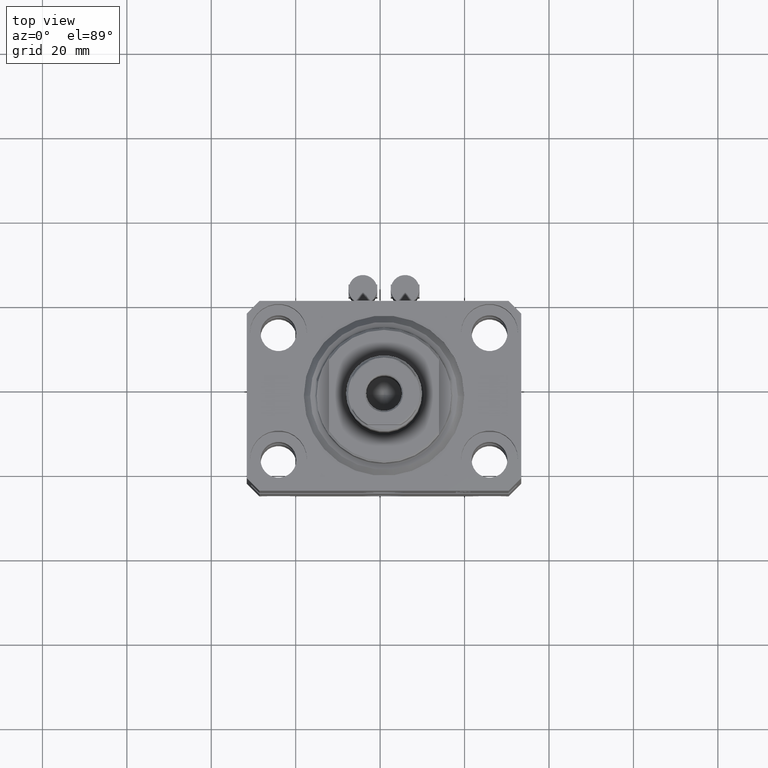
[diagram: clean part render]
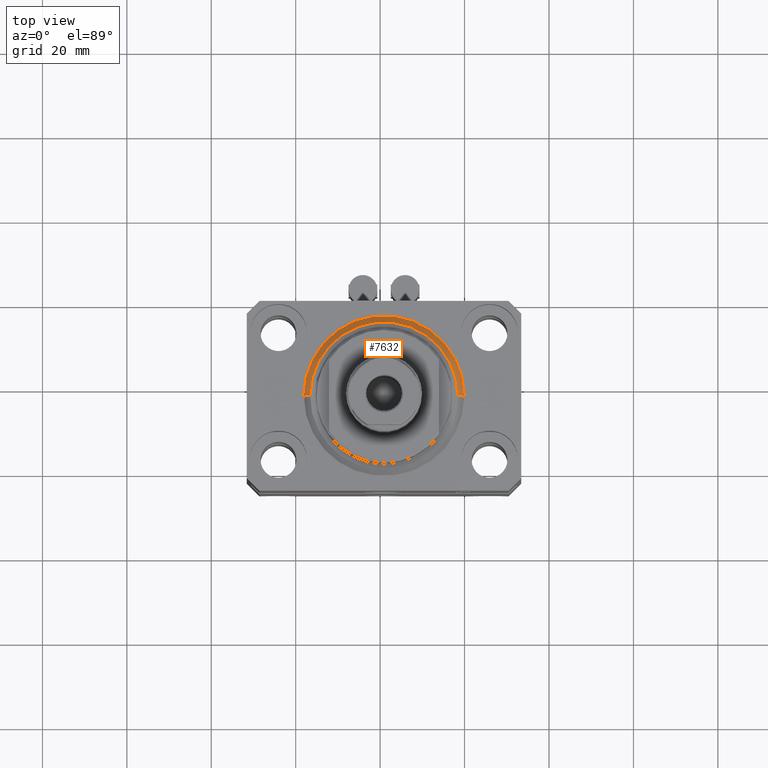
[diagram: same view with one face highlighted and labeled with its STEP entity id]
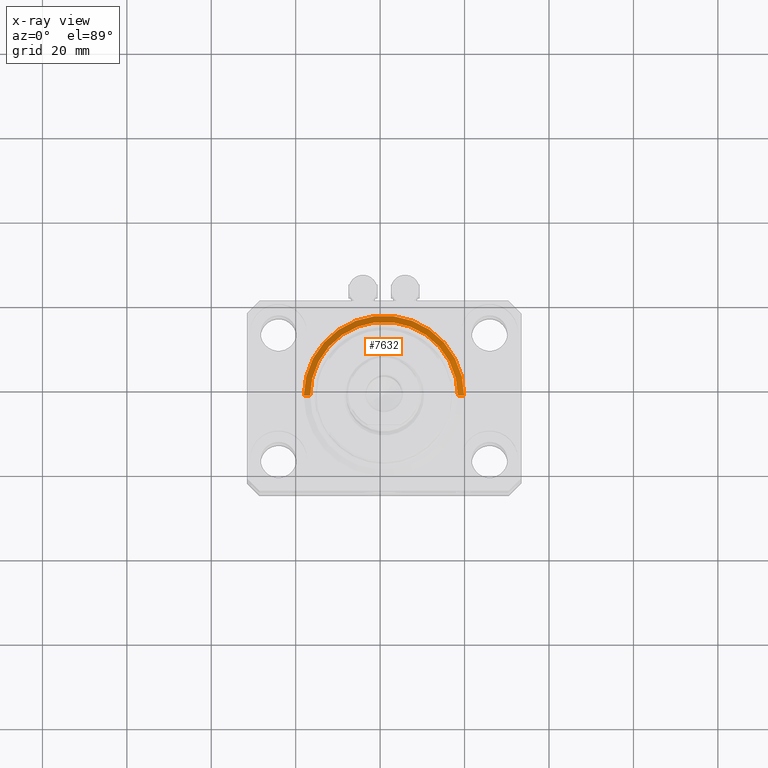
[diagram: x-ray of the same camera — body ghosted, the highlighted face saturated]
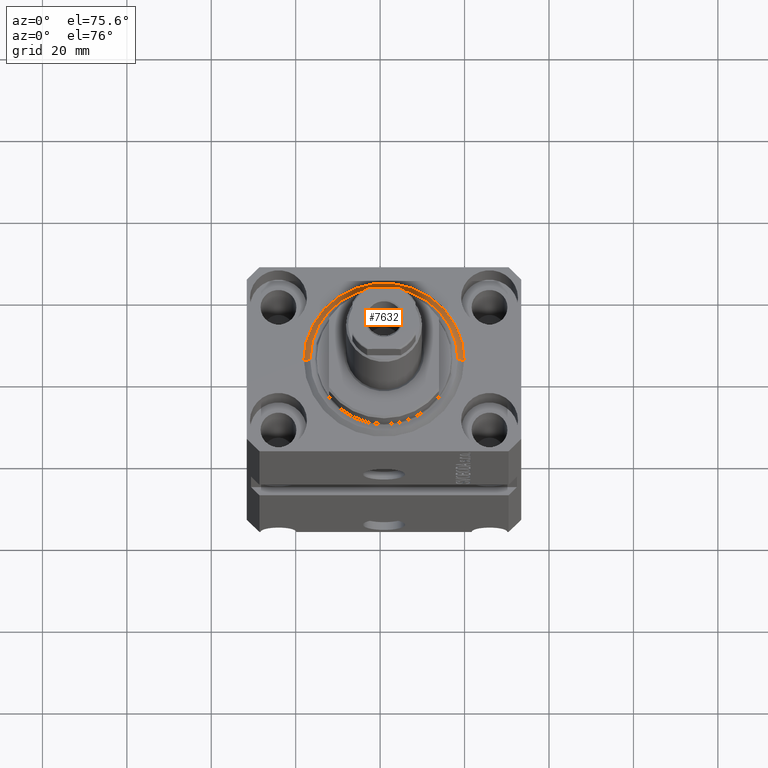
[diagram: same view with one face highlighted and labeled with its STEP entity id]
A machine part, top view. The second image highlights one B-rep face of the part: STEP entity #7632.
The next image is the same camera in x-ray: the body ghosted, the highlighted face saturated — about 0% of this face is hidden behind the body in this view.
A second angle (auxiliary view) of the same face is appended — the face is thin or edge-on in the first view.
In plain terms, the highlighted conical surface has half-angle 45 deg.
Its self-contained STEP definition (entity closure, byte-faithful):
#295 = EDGE_CURVE ( 'NONE', #9551, #37751, #21228, .T. ) ;
#1890 = DIRECTION ( 'NONE',  ( 1.000000000000000000, 0.000000000000000000, 0.000000000000000000 ) ) ;
#2453 = VECTOR ( 'NONE', #20586, 1000.000000000000000 ) ;
#2982 = CARTESIAN_POINT ( 'NONE',  ( -19.00000000000000000, 0.000000000000000000, 1.500000000000001332 ) ) ;
#3157 = CARTESIAN_POINT ( 'NONE',  ( -19.00000000000000000, 2.326828918379970970E-15, 1.500000000000001332 ) ) ;
#3369 = CARTESIAN_POINT ( 'NONE',  ( 19.00000000000000000, 0.000000000000000000, 1.500000000000001332 ) ) ;
#3701 = CARTESIAN_POINT ( 'NONE',  ( 0.000000000000000000, 0.000000000000000000, 1.500000000000001332 ) ) ;
#6308 = CARTESIAN_POINT ( 'NONE',  ( 17.49999999999999645, 0.000000000000000000, 0.000000000000000000 ) ) ;
#6811 = LINE ( 'NONE', #3369, #41154 ) ;
#7632 = ADVANCED_FACE ( 'NONE', ( #38334 ), #29332, .T. ) ;
#8202 = VERTEX_POINT ( 'NONE', #25595 ) ;
#9551 = VERTEX_POINT ( 'NONE', #11304 ) ;
#10510 = ORIENTED_EDGE ( 'NONE', *, *, #24462, .F. ) ;
#10989 = DIRECTION ( 'NONE',  ( 1.000000000000000000, 0.000000000000000000, 0.000000000000000000 ) ) ;
#11032 = AXIS2_PLACEMENT_3D ( 'NONE', #3701, #38776, #41544 ) ;
#11304 = CARTESIAN_POINT ( 'NONE',  ( -17.49999999999999645, 2.234980408443919215E-15, 0.000000000000000000 ) ) ;
#12064 = EDGE_CURVE ( 'NONE', #8202, #40283, #14915, .T. ) ;
#12269 = EDGE_CURVE ( 'NONE', #9551, #40283, #26801, .T. ) ;
#12432 = DIRECTION ( 'NONE',  ( -0.000000000000000000, -0.000000000000000000, -1.000000000000000000 ) ) ;
#14915 = CIRCLE ( 'NONE', #33930, 19.00000000000000000 ) ;
#17348 = DIRECTION ( 'NONE',  ( 0.7071067811865483499, 0.000000000000000000, 0.7071067811865467956 ) ) ;
#18067 = ORIENTED_EDGE ( 'NONE', *, *, #12269, .T. ) ;
#20586 = DIRECTION ( 'NONE',  ( -0.7071067811865483499, 8.659560562354942719E-17, 0.7071067811865467956 ) ) ;
#21228 = CIRCLE ( 'NONE', #30745, 17.49999999999999645 ) ;
#24462 = EDGE_CURVE ( 'NONE', #37751, #8202, #6811, .T. ) ;
#24965 = CARTESIAN_POINT ( 'NONE',  ( 0.000000000000000000, 0.000000000000000000, 1.500000000000001332 ) ) ;
#25202 = DIRECTION ( 'NONE',  ( -0.000000000000000000, -0.000000000000000000, 1.000000000000000000 ) ) ;
#25595 = CARTESIAN_POINT ( 'NONE',  ( 19.00000000000000000, 2.326828918379970970E-15, 1.500000000000001332 ) ) ;
#26801 = LINE ( 'NONE', #3157, #2453 ) ;
#29332 = CONICAL_SURFACE ( 'NONE', #11032, 19.00000000000000000, 0.7853981633974492782 ) ;
#30745 = AXIS2_PLACEMENT_3D ( 'NONE', #33054, #12432, #1890 ) ;
#32028 = EDGE_LOOP ( 'NONE', ( #38187, #18067, #34908, #10510 ) ) ;
#33054 = CARTESIAN_POINT ( 'NONE',  ( 0.000000000000000000, 0.000000000000000000, 0.000000000000000000 ) ) ;
#33930 = AXIS2_PLACEMENT_3D ( 'NONE', #24965, #25202, #10989 ) ;
#34908 = ORIENTED_EDGE ( 'NONE', *, *, #12064, .F. ) ;
#37751 = VERTEX_POINT ( 'NONE', #6308 ) ;
#38187 = ORIENTED_EDGE ( 'NONE', *, *, #295, .F. ) ;
#38334 = FACE_OUTER_BOUND ( 'NONE', #32028, .T. ) ;
#38776 = DIRECTION ( 'NONE',  ( -0.000000000000000000, -0.000000000000000000, 1.000000000000000000 ) ) ;
#40283 = VERTEX_POINT ( 'NONE', #2982 ) ;
#41154 = VECTOR ( 'NONE', #17348, 1000.000000000000000 ) ;
#41544 = DIRECTION ( 'NONE',  ( 1.000000000000000000, 0.000000000000000000, 0.000000000000000000 ) ) ;